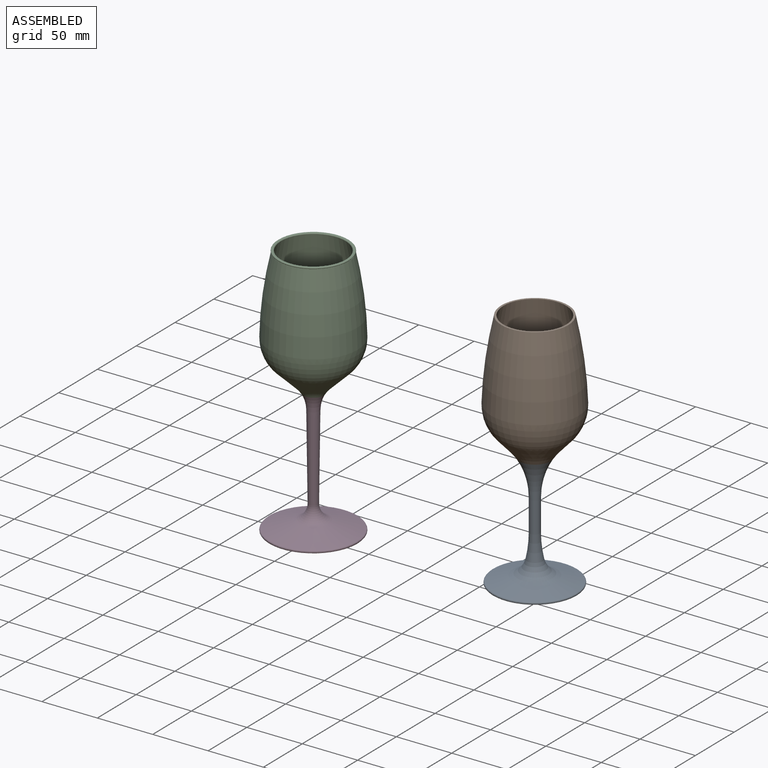
[diagram: assembled view]
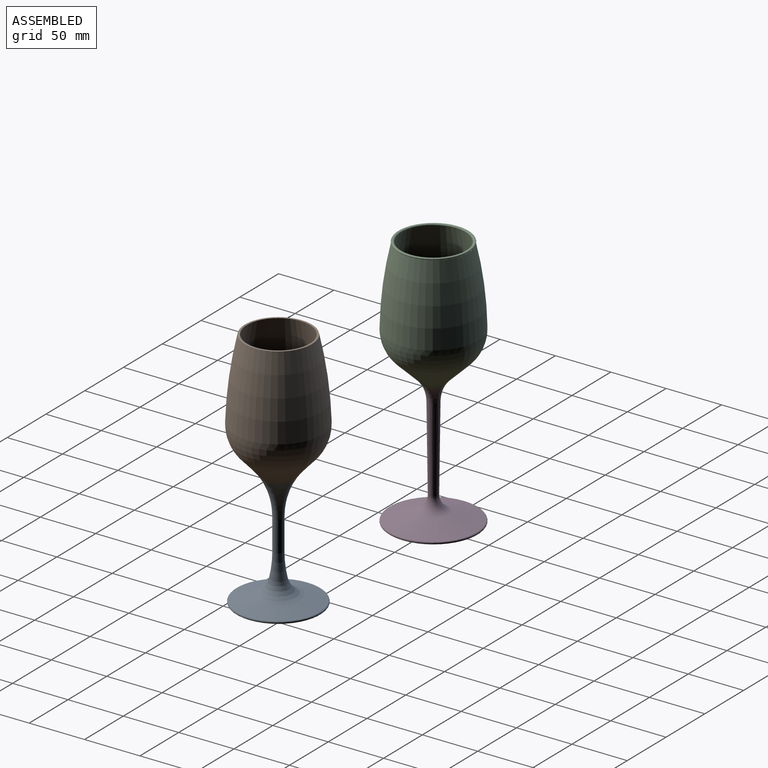
[diagram: assembled view, second angle]
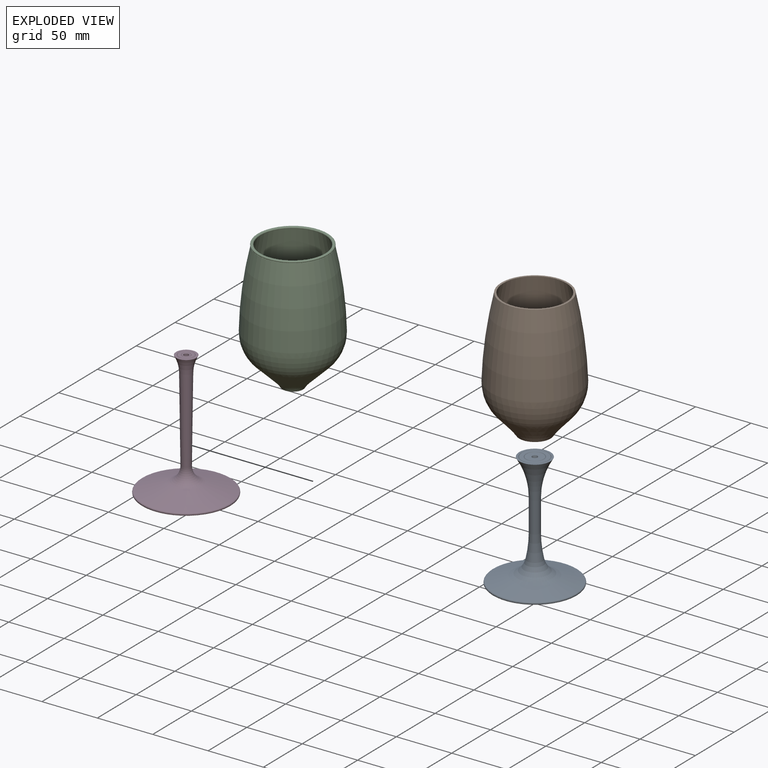
[diagram: exploded view]
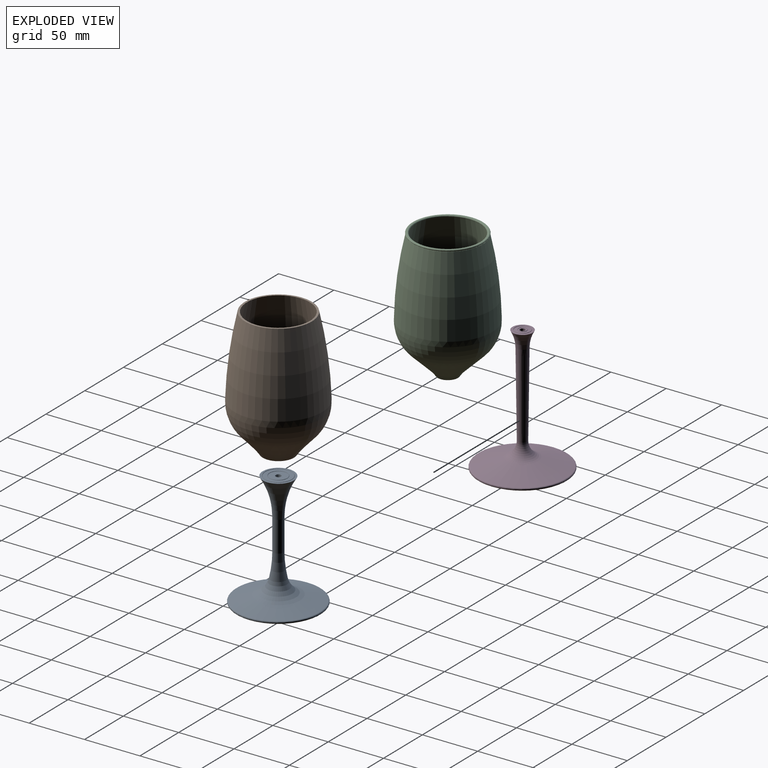
[diagram: exploded view, second angle]
ASSEMBLY  parts=4 mates=4
PART A: 22 faces, bbox 82.3x82.3x146.3 mm
  f0: plane 4x4mm, normal (0,0,1), area 12.6mm2, adj f1
  f1: cone r=2.48mm half-angle=10deg, axis (0,0,1), area 38.6mm2, adj f0,f2
  f2: plane 15.6x15.6mm, normal (0,0,1), area 171.8mm2, adj f1,f3
  f3: cone r=8mm half-angle=30deg, axis (0,0,1), area 20.1mm2, adj f2,f4
  f4: cone r=8.2mm half-angle=30deg, axis (0,0,-1), area 20.6mm2, adj f3,f5
  f5: plane 23.6x23.6mm, normal (0,0,1), area 225.9mm2, adj f4,f6
  f6: cone r=12mm half-angle=30deg, axis (0,0,1), area 30.2mm2, adj f5,f7
  f7: cone r=12.2mm half-angle=30deg, axis (0,0,-1), area 30.7mm2, adj f6,f8
  f8: plane 28.22x28.22mm, normal (0,0,1), area 157.6mm2, adj f7,f9
  f9: torus R=62.77mm, axis (0,0,-1), area 1183.2mm2, adj f8,f10
  f10: torus R=71.64mm, axis (0,0,-1), area 533.5mm2, adj f9,f11
  f11: cylinder r=4.5mm len=27.68mm, axis (0,0,-1), area 782.5mm2, adj f10,f12
  f12: torus R=104.5mm, axis (0,0,-1), area 743.7mm2, adj f11,f13
  f13: torus R=24.03mm, axis (0,0,-1), area 1437mm2, adj f12,f14
  f14: cone r=19.5mm half-angle=75deg, axis (0,0,-1), area 3278mm2, adj f13,f15
  f15: torus R=37mm, axis (0,0,-1), area 310.4mm2, adj f14,f16
  f16: cylinder r=38mm len=76mm, axis (0,0,-1), area 55.6mm2, adj f15,f17
  f17: torus R=37mm, axis (0,0,-1), area 371.5mm2, adj f16,f18
  f18: plane 74x74mm, normal (0,0,-1), area 445.3mm2, adj f17,f19
  f19: cone r=35.03mm half-angle=75deg, axis (0,0,-1), area 3565mm2, adj f18,f20
  f20: torus R=6.27mm, axis (0,0,-1), area 292.1mm2, adj f19,f21
  f21: plane 12.55x12.55mm, normal (0,0,-1), area 123.7mm2, adj f20
PART B: 12 faces, bbox 79x79x147.1 mm
  f0: sphere r=30mm, area 1827.5mm2, adj f1
  f1: cone r=28.75mm half-angle=42.6deg, axis (0,0,1), area 1572.7mm2, adj f0,f2
  f2: torus R=3.5mm, axis (0,0,-1), area 5820.6mm2, adj f1,f3
  f3: revolved ~75.57x75.57mm, area 15571.6mm2, adj f2,f4
  f4: plane 60.4x60.4mm, normal (0,0,1), area 321.5mm2, adj f3,f5
  f5: revolved ~78.96x78.96mm, area 16336.7mm2, adj f4,f6
  f6: torus R=3.5mm, axis (0,0,-1), area 6381.5mm2, adj f5,f7
  f7: cone r=20.08mm half-angle=42.6deg, axis (0,0,1), area 2307mm2, adj f6,f8
  f8: torus R=62.77mm, axis (0,0,-1), area 1040.8mm2, adj f7,f9
  f9: plane 28.22x28.22mm, normal (0,0,-1), area 606.1mm2, adj f8,f11
  f10: plane 4x4mm, normal (0,0,-1), area 12.6mm2, adj f11
  f11: cone r=2.48mm half-angle=10deg, axis (0,0,1), area 38.6mm2, adj f9,f10
PART C: 22 faces, bbox 80x80x130.5 mm
  f0: plane 62.68x62.68mm, normal (0,0,1), area 39.3mm2, adj f1,f12
  f1: revolved ~79.99x79.99mm, area 16246.8mm2, adj f0,f2
  f2: torus R=7mm, axis (0,0,-1), area 6235.3mm2, adj f1,f3
  f3: cone r=29.92mm half-angle=46deg, axis (0,0,1), area 3095.2mm2, adj f2,f4
  f4: torus R=32.42mm, axis (0,0,-1), area 507mm2, adj f3,f5
  f5: plane 18.5x18.5mm, normal (0,0,-1), area 249.5mm2, adj f4,f6
  f6: cone r=2.48mm half-angle=10deg, axis (0,0,1), area 38.6mm2, adj f5,f7
  f7: plane 4x4mm, normal (0,0,-1), area 12.6mm2, adj f6
  f8: plane 61.86x61.86mm, normal (0,0,1), area 168.1mm2, adj f9,f14
  f9: torus R=30.93mm, axis (0,0,1), area 231.8mm2, adj f8,f10
  f10: cylinder r=31.68mm len=63.36mm, axis (0,0,1), area 1mm2, adj f9,f11
  f11: torus R=31.02mm, axis (0,0,1), area 188.6mm2, adj f10,f12
  f12: cone r=31.14mm half-angle=11.3deg, axis (0,0,-1), area 39.8mm2, adj f0,f11
  f13: cone r=29.29mm half-angle=19.8deg, axis (0,0,-1), area 74.2mm2, adj f20,f21
  f14: torus R=30.05mm, axis (0,0,1), area 120.4mm2, adj f8,f21
  f15: sphere r=40mm, area 231.7mm2, adj f16
  f16: torus R=8.11mm, axis (0,0,-1), area 78.9mm2, adj f15,f17
  f17: torus R=32.42mm, axis (0,0,-1), area 266mm2, adj f16,f18
  f18: cone r=28.53mm half-angle=46deg, axis (0,0,1), area 2897.9mm2, adj f17,f19
  f19: torus R=7mm, axis (0,0,-1), area 5570.2mm2, adj f18,f20
  f20: revolved ~75.99x75.99mm, area 15367.8mm2, adj f13,f19
  f21: torus R=30mm, axis (0,0,-1), area 209.8mm2, adj f13,f14
PART D: 21 faces, bbox 86.6x86.6x118.6 mm
  f0: torus R=33.25mm, axis (0,0,-1), area 602.9mm2, adj f1,f6
  f1: plane 18.27x18.27mm, normal (0,0,1), area 110.3mm2, adj f0,f20
  f2: plane 7.1x7.1mm, normal (0,0,1), area 22.9mm2, adj f4,f17
  f3: plane 13.1x13.1mm, normal (0,0,1), area 85.6mm2, adj f18,f19
  f4: cylinder r=2.3mm len=4.6mm, axis (0,0,1), area 57.8mm2, adj f2,f5
  f5: plane 4.6x4.6mm, normal (0,0,1), area 16.6mm2, adj f4
  f6: cone r=4.75mm half-angle=0.8deg, axis (0,0,1), area 2278.8mm2, adj f0,f7
  f7: torus R=17.75mm, axis (0,0,-1), area 840.6mm2, adj f6,f8
  f8: cone r=26.61mm half-angle=73.6deg, axis (0,0,-1), area 4416.2mm2, adj f7,f9
  f9: torus R=39mm, axis (0,0,-1), area 320.9mm2, adj f8,f10
  f10: cylinder r=40mm len=80mm, axis (0,0,-1), area 63.2mm2, adj f9,f11
  f11: torus R=39mm, axis (0,0,-1), area 391.2mm2, adj f10,f12
  f12: plane 78x78mm, normal (0,0,-1), area 465.4mm2, adj f11,f13
  f13: cone r=23.38mm half-angle=73.6deg, axis (0,0,-1), area 4186.3mm2, adj f12,f14,f15
  f14: torus R=3mm, axis (0,0,-1), area 136.5mm2, adj f13,f15,f16
  f15: torus R=3mm, axis (0,0,-1), area 136.5mm2, adj f13,f14,f16
  f16: plane 6x6mm, normal (0,0,-1), area 28.3mm2, adj f14,f15
  f17: cone r=3.65mm half-angle=30deg, axis (0,0,1), area 9.3mm2, adj f2,f18
  f18: cone r=3.85mm half-angle=30deg, axis (0,0,-1), area 9.8mm2, adj f3,f17
  f19: cone r=6.65mm half-angle=30deg, axis (0,0,1), area 16.9mm2, adj f3,f20
  f20: cone r=6.85mm half-angle=30deg, axis (0,0,-1), area 17.4mm2, adj f1,f19
PLACE A t=(200,0,0)mm
PLACE B t=(200,0,0)mm
PLACE C at identity
PLACE D t=(0,0,-220.61)mm
MATE cylindrical A.f1 <-> B.f1  axis (0,0,1) through (200,0,-115.49)mm
MATE planar B.f1 <-> A.f1  axis (0,0,-1) through (200,0,-115.49)mm
MATE cylindrical C.f2 <-> D.f4  axis (0,0,-1) through (0,0,-116.61)mm
MATE planar D.f11 <-> C.f2  axis (0,0,1) through (0,0,-116.61)mm
